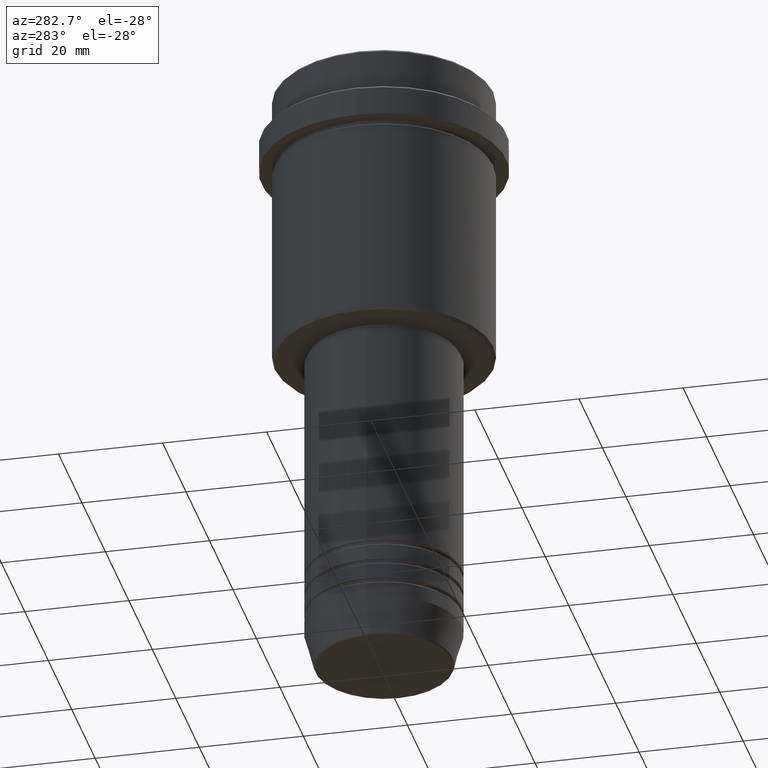
[diagram: clean part render]
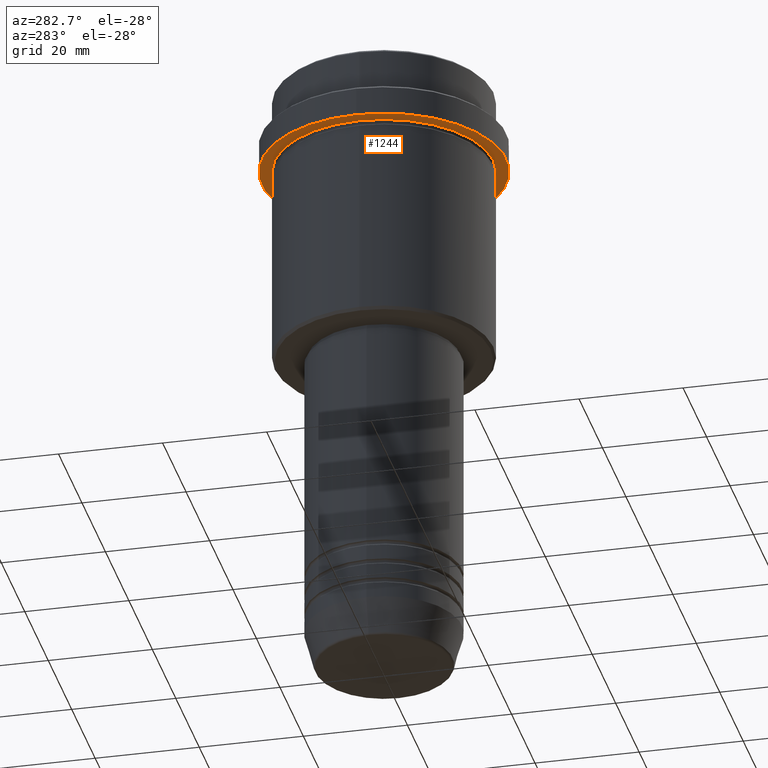
[diagram: same view with one face highlighted and labeled with its STEP entity id]
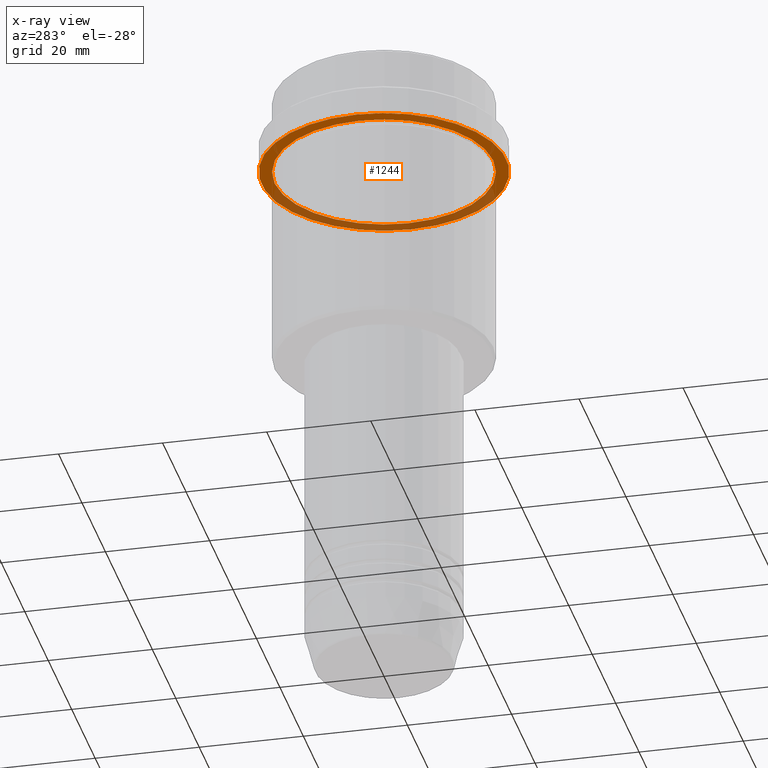
[diagram: x-ray of the same camera — body ghosted, the highlighted face saturated]
A machine part, auxiliary view. The second image highlights one B-rep face of the part: STEP entity #1244.
The next image is the same camera in x-ray: the body ghosted, the highlighted face saturated — about 38% of this face is hidden behind the body in this view.
In plain terms, the highlighted planar face has unit normal (0, 0, -1).
Its self-contained STEP definition (entity closure, byte-faithful):
#11 = DIRECTION ( 'NONE',  ( 1.000000000000000000, 0.000000000000000000, 0.000000000000000000 ) ) ;
#12 = DIRECTION ( 'NONE',  ( 0.000000000000000000, 0.000000000000000000, -1.000000000000000000 ) ) ;
#16 = EDGE_LOOP ( 'NONE', ( #872, #1193 ) ) ;
#76 = EDGE_CURVE ( 'NONE', #962, #1409, #1001, .T. ) ;
#91 = AXIS2_PLACEMENT_3D ( 'NONE', #891, #673, #810 ) ;
#191 = CARTESIAN_POINT ( 'NONE',  ( 0.000000000000000000, 0.000000000000000000, -15.00000000000000000 ) ) ;
#213 = DIRECTION ( 'NONE',  ( -0.000000000000000000, -0.000000000000000000, 1.000000000000000000 ) ) ;
#242 = FACE_BOUND ( 'NONE', #1254, .T. ) ;
#315 = DIRECTION ( 'NONE',  ( -0.000000000000000000, -0.000000000000000000, 1.000000000000000000 ) ) ;
#326 = CIRCLE ( 'NONE', #1245, 20.99999999999999289 ) ;
#334 = DIRECTION ( 'NONE',  ( -1.000000000000000000, 0.000000000000000000, 0.000000000000000000 ) ) ;
#349 = DIRECTION ( 'NONE',  ( -1.000000000000000000, 0.000000000000000000, 0.000000000000000000 ) ) ;
#371 = AXIS2_PLACEMENT_3D ( 'NONE', #650, #12, #434 ) ;
#393 = CIRCLE ( 'NONE', #1054, 23.50000000000000355 ) ;
#434 = DIRECTION ( 'NONE',  ( -1.000000000000000000, 0.000000000000000000, -0.000000000000000000 ) ) ;
#444 = CARTESIAN_POINT ( 'NONE',  ( 0.000000000000000000, 0.000000000000000000, -15.00000000000000178 ) ) ;
#574 = CIRCLE ( 'NONE', #756, 20.99999999999999289 ) ;
#646 = CARTESIAN_POINT ( 'NONE',  ( 0.000000000000000000, 0.000000000000000000, -15.00000000000000178 ) ) ;
#650 = CARTESIAN_POINT ( 'NONE',  ( 0.000000000000000000, 23.50000000000000355, -15.00000000000000178 ) ) ;
#673 = DIRECTION ( 'NONE',  ( -0.000000000000000000, -0.000000000000000000, 1.000000000000000000 ) ) ;
#756 = AXIS2_PLACEMENT_3D ( 'NONE', #646, #315, #349 ) ;
#765 = CARTESIAN_POINT ( 'NONE',  ( 23.50000000000000355, 0.000000000000000000, -15.00000000000000000 ) ) ;
#810 = DIRECTION ( 'NONE',  ( 1.000000000000000000, 0.000000000000000000, 0.000000000000000000 ) ) ;
#830 = EDGE_CURVE ( 'NONE', #1409, #962, #393, .T. ) ;
#840 = VERTEX_POINT ( 'NONE', #975 ) ;
#861 = ORIENTED_EDGE ( 'NONE', *, *, #1225, .T. ) ;
#872 = ORIENTED_EDGE ( 'NONE', *, *, #76, .F. ) ;
#891 = CARTESIAN_POINT ( 'NONE',  ( 0.000000000000000000, 0.000000000000000000, -15.00000000000000000 ) ) ;
#962 = VERTEX_POINT ( 'NONE', #765 ) ;
#975 = CARTESIAN_POINT ( 'NONE',  ( -20.99999999999999289, 0.000000000000000000, -15.00000000000000178 ) ) ;
#994 = CARTESIAN_POINT ( 'NONE',  ( 20.99999999999999289, 2.571758278209440872E-15, -15.00000000000000178 ) ) ;
#1001 = CIRCLE ( 'NONE', #91, 23.50000000000000355 ) ;
#1054 = AXIS2_PLACEMENT_3D ( 'NONE', #191, #1311, #11 ) ;
#1184 = ORIENTED_EDGE ( 'NONE', *, *, #1384, .T. ) ;
#1193 = ORIENTED_EDGE ( 'NONE', *, *, #830, .F. ) ;
#1225 = EDGE_CURVE ( 'NONE', #1275, #840, #574, .T. ) ;
#1244 = ADVANCED_FACE ( 'NONE', ( #242, #1332 ), #1324, .T. ) ;
#1245 = AXIS2_PLACEMENT_3D ( 'NONE', #444, #213, #334 ) ;
#1254 = EDGE_LOOP ( 'NONE', ( #1184, #861 ) ) ;
#1275 = VERTEX_POINT ( 'NONE', #994 ) ;
#1311 = DIRECTION ( 'NONE',  ( -0.000000000000000000, -0.000000000000000000, 1.000000000000000000 ) ) ;
#1324 = PLANE ( 'NONE',  #371 ) ;
#1332 = FACE_OUTER_BOUND ( 'NONE', #16, .T. ) ;
#1365 = CARTESIAN_POINT ( 'NONE',  ( -23.50000000000000711, 2.877919977996281109E-15, -15.00000000000000000 ) ) ;
#1384 = EDGE_CURVE ( 'NONE', #840, #1275, #326, .T. ) ;
#1409 = VERTEX_POINT ( 'NONE', #1365 ) ;